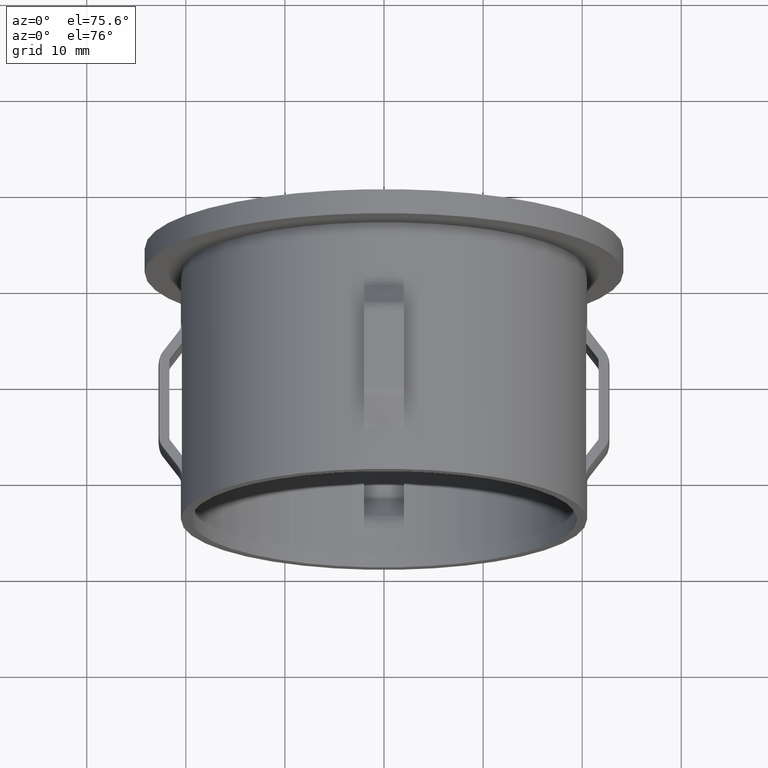
[diagram: clean part render]
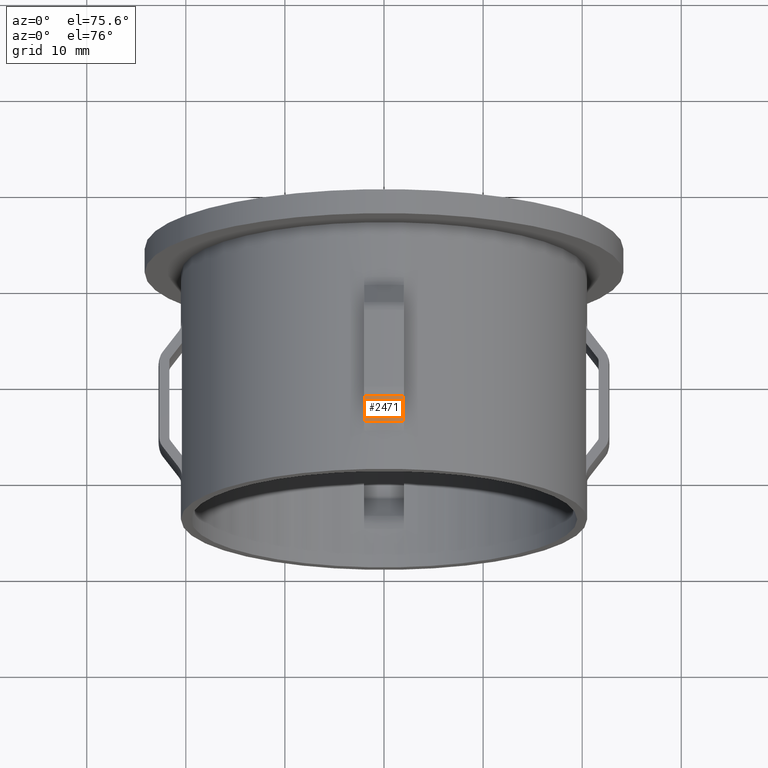
[diagram: same view with one face highlighted and labeled with its STEP entity id]
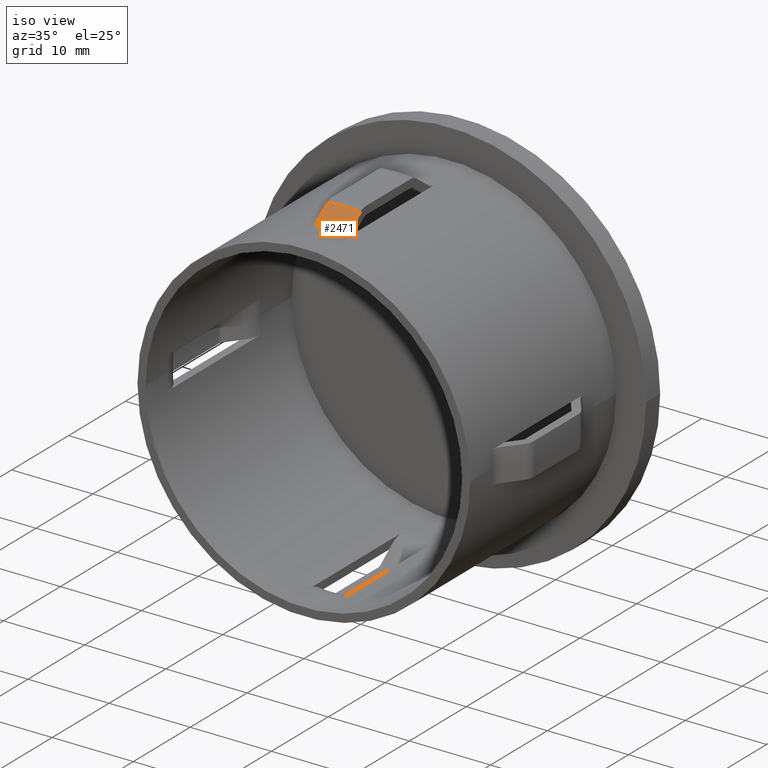
[diagram: same view with one face highlighted and labeled with its STEP entity id]
A machine part, auxiliary view. The second image highlights one B-rep face of the part: STEP entity #2471.
A second angle (iso view) of the same face is appended — the face is thin or edge-on in the first view.
In plain terms, the highlighted conical surface has half-angle 36.87 deg.
Its self-contained STEP definition (entity closure, byte-faithful):
#1 = ORIENTED_EDGE ( 'NONE', *, *, #3510, .T. ) ;
#203 = DIRECTION ( 'NONE',  ( -1.714505518806297100E-016, 1.000000000000000000, -0.0000000000000000000 ) ) ;
#357 = DIRECTION ( 'NONE',  ( -1.714505518806297100E-016, 1.000000000000000000, -0.0000000000000000000 ) ) ;
#1414 = CARTESIAN_POINT ( 'NONE',  ( 3.749868498989203100E-015, 4.899999999999991500, 0.0000000000000000000 ) ) ;
#1534 = CARTESIAN_POINT ( 'NONE',  ( 3.372677284851816700E-015, 7.099999999999995200, 0.0000000000000000000 ) ) ;
#2107 = CARTESIAN_POINT ( 'NONE',  ( 2.000000000000004900, 6.417784115017738600, 21.84703120243186100 ) ) ;
#2126 = VERTEX_POINT ( 'NONE', #14675 ) ;
#2131 = B_SPLINE_CURVE_WITH_KNOTS ( 'NONE', 3,
 ( #9364, #11805, #14143, #10482, #7175, #11652, #10532 ),
 .UNSPECIFIED., .F., .F.,
 ( 4, 3, 4 ),
 ( 0.005301460383148887600, 0.005493743063659625900, 0.008055733798496866500 ),
 .UNSPECIFIED. ) ;
#2471 = ADVANCED_FACE ( 'NONE', ( #12971 ), #4797, .T. ) ;
#2615 = DIRECTION ( 'NONE',  ( -1.714505518806297100E-016, 1.000000000000000000, -0.0000000000000000000 ) ) ;
#3510 = EDGE_CURVE ( 'NONE', #2126, #4243, #7503, .T. ) ;
#3641 = CARTESIAN_POINT ( 'NONE',  ( 3.749868498989203100E-015, 4.899999999999991500, 0.0000000000000000000 ) ) ;
#3734 = DIRECTION ( 'NONE',  ( -1.000000000000000000, -1.668003342285390800E-016, 0.0000000000000000000 ) ) ;
#4243 = VERTEX_POINT ( 'NONE', #5606 ) ;
#4378 = CARTESIAN_POINT ( 'NONE',  ( 2.000000000000004900, 4.899999999999993200, 20.70362287137205800 ) ) ;
#4797 = CONICAL_SURFACE ( 'NONE', #12372, 20.80000000000000800, 0.6435011087932821500 ) ;
#4821 = EDGE_LOOP ( 'NONE', ( #8894, #1, #13016, #13476 ) ) ;
#4924 = DIRECTION ( 'NONE',  ( -1.000000000000000000, -1.545410669021654100E-016, 0.0000000000000000000 ) ) ;
#5004 = DIRECTION ( 'NONE',  ( -1.000000000000000000, -1.668003342285390800E-016, 0.0000000000000000000 ) ) ;
#5516 = CARTESIAN_POINT ( 'NONE',  ( 2.000000000000004900, 5.735635365409478000, 21.33323755193674700 ) ) ;
#5606 = CARTESIAN_POINT ( 'NONE',  ( 2.000000000000004900, 4.899999999999993200, 20.70362287137205800 ) ) ;
#6743 = CARTESIAN_POINT ( 'NONE',  ( 2.000000000000004900, 7.099999999999996100, 22.36073567662746300 ) ) ;
#7175 = CARTESIAN_POINT ( 'NONE',  ( -1.999999999999996200, 5.735635365409474500, 21.33323755193674400 ) ) ;
#7503 = CIRCLE ( 'NONE', #7951, 20.80000000000000800 ) ;
#7865 = EDGE_CURVE ( 'NONE', #9765, #13910, #12557, .T. ) ;
#7951 = AXIS2_PLACEMENT_3D ( 'NONE', #3641, #203, #3734 ) ;
#8894 = ORIENTED_EDGE ( 'NONE', *, *, #10774, .F. ) ;
#9364 = CARTESIAN_POINT ( 'NONE',  ( -1.999999999999996200, 4.899999999999992400, 20.70362287137206200 ) ) ;
#9622 = AXIS2_PLACEMENT_3D ( 'NONE', #1534, #2615, #4924 ) ;
#9765 = VERTEX_POINT ( 'NONE', #14086 ) ;
#10482 = CARTESIAN_POINT ( 'NONE',  ( -1.999999999999996200, 5.053569848368969300, 20.81933344512792400 ) ) ;
#10532 = CARTESIAN_POINT ( 'NONE',  ( -1.999999999999995800, 7.099999999999995200, 22.36073567662746300 ) ) ;
#10774 = EDGE_CURVE ( 'NONE', #2126, #9765, #2131, .T. ) ;
#11652 = CARTESIAN_POINT ( 'NONE',  ( -1.999999999999995800, 6.417784115017735000, 21.84703120243186100 ) ) ;
#11805 = CARTESIAN_POINT ( 'NONE',  ( -1.999999999999996200, 4.951189473155041700, 20.74219369475790500 ) ) ;
#11946 = EDGE_CURVE ( 'NONE', #4243, #13910, #14013, .T. ) ;
#12372 = AXIS2_PLACEMENT_3D ( 'NONE', #1414, #357, #5004 ) ;
#12506 = CARTESIAN_POINT ( 'NONE',  ( 2.000000000000004900, 4.951189473155041700, 20.74219369475790500 ) ) ;
#12557 = CIRCLE ( 'NONE', #9622, 22.45000000000000600 ) ;
#12971 = FACE_OUTER_BOUND ( 'NONE', #4821, .T. ) ;
#13016 = ORIENTED_EDGE ( 'NONE', *, *, #11946, .T. ) ;
#13476 = ORIENTED_EDGE ( 'NONE', *, *, #7865, .F. ) ;
#13810 = CARTESIAN_POINT ( 'NONE',  ( 2.000000000000004900, 5.002379425257529100, 20.78076388251405900 ) ) ;
#13910 = VERTEX_POINT ( 'NONE', #14039 ) ;
#14013 = B_SPLINE_CURVE_WITH_KNOTS ( 'NONE', 3,
 ( #4378, #12506, #13810, #15023, #5516, #2107, #6743 ),
 .UNSPECIFIED., .F., .F.,
 ( 4, 3, 4 ),
 ( 0.005301460383148875500, 0.005493743063659623300, 0.008055733798496857900 ),
 .UNSPECIFIED. ) ;
#14039 = CARTESIAN_POINT ( 'NONE',  ( 2.000000000000004900, 7.099999999999996100, 22.36073567662746300 ) ) ;
#14086 = CARTESIAN_POINT ( 'NONE',  ( -1.999999999999995800, 7.099999999999995200, 22.36073567662746300 ) ) ;
#14143 = CARTESIAN_POINT ( 'NONE',  ( -1.999999999999996200, 5.002379425257526400, 20.78076388251405900 ) ) ;
#14675 = CARTESIAN_POINT ( 'NONE',  ( -1.999999999999996200, 4.899999999999992400, 20.70362287137206200 ) ) ;
#15023 = CARTESIAN_POINT ( 'NONE',  ( 2.000000000000004900, 5.053569848368974600, 20.81933344512792800 ) ) ;